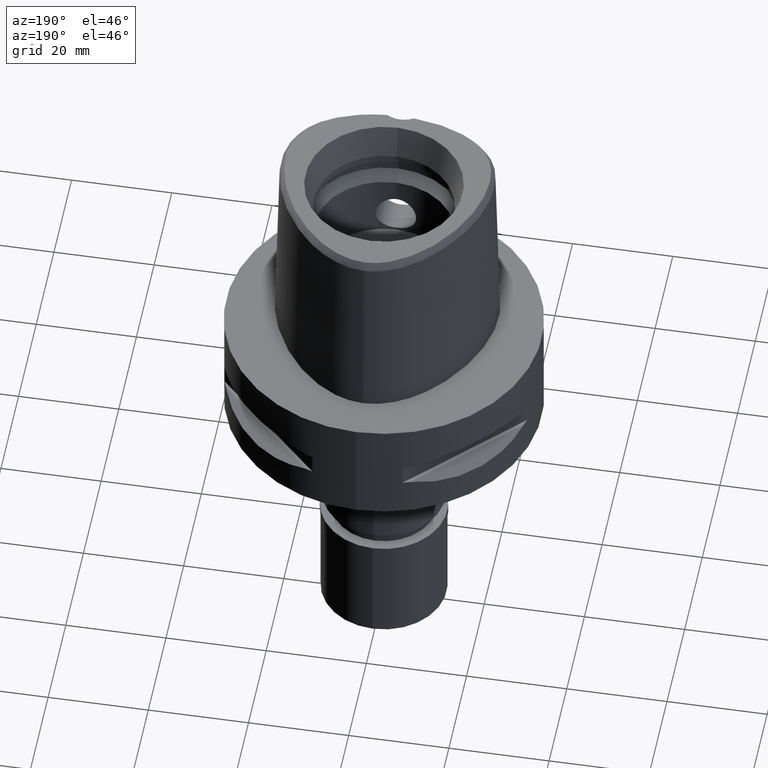
[diagram: clean part render]
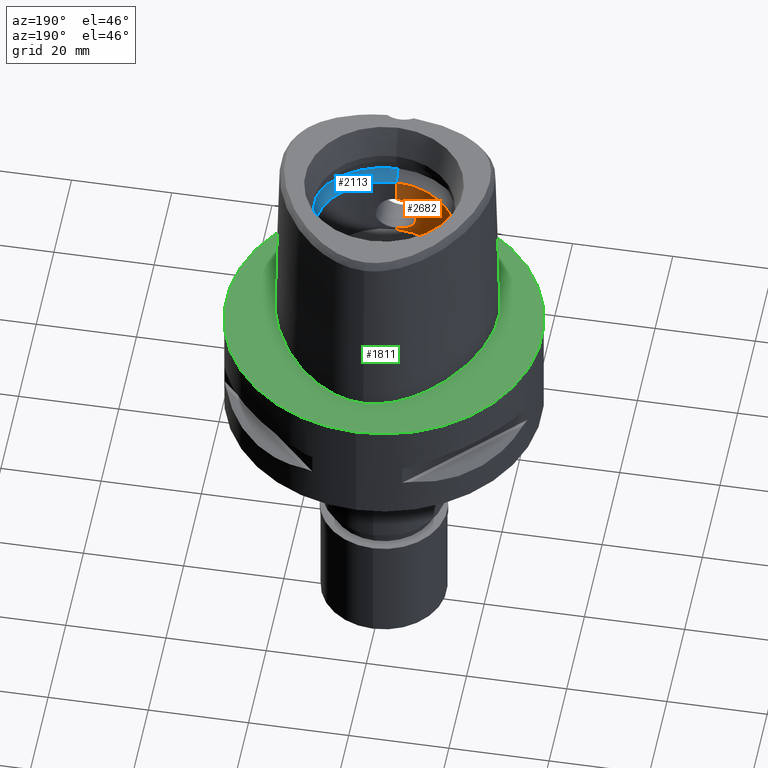
[diagram: same view with three faces highlighted in distinct colors, each labeled with its STEP entity id]
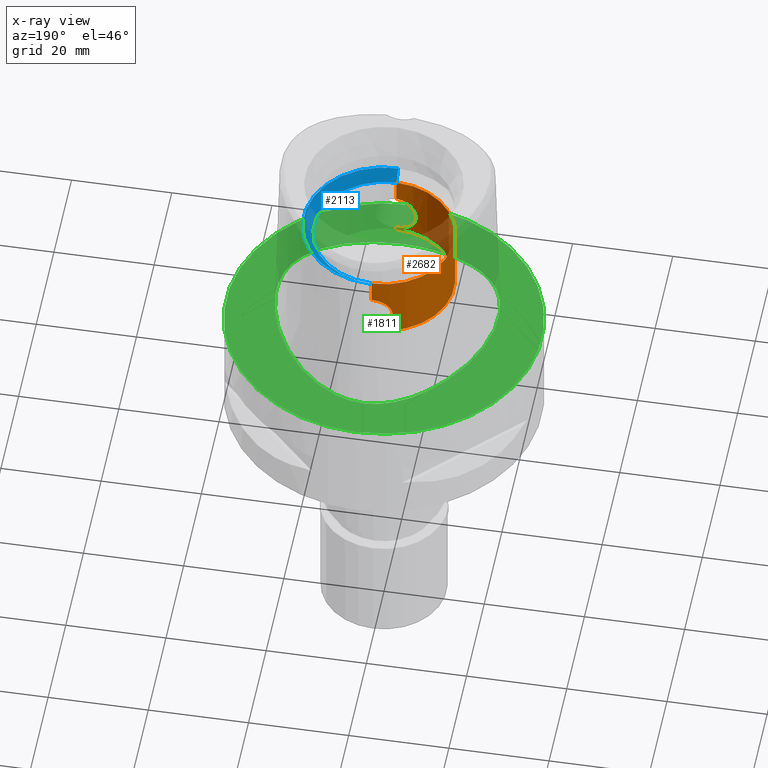
[diagram: x-ray of the same camera — body ghosted, the three highlighted faces saturated]
A machine part, auxiliary view with three faces highlighted in distinct colors.
The next image is the same camera in x-ray (body ghosted, the three faces saturated) — at least one of them is partly hidden behind the body in this view.
Their STEP definitions:

[orange] entity #2682 — the highlighted cylindrical surface (partial cylindrical patch) has radius 14 mm, axis along (0, 0, -1).
#57 = CARTESIAN_POINT ( 'NONE',  ( -1.565197752269892106, 13.91212870711917482, 11.76466637401746418 ) ) ;
#59 = EDGE_CURVE ( 'NONE', #1384, #2448, #2568, .T. ) ;
#60 = CARTESIAN_POINT ( 'NONE',  ( -1.468706225406943622, 13.92269496061643252, 19.27437575103957101 ) ) ;
#80 = CARTESIAN_POINT ( 'NONE',  ( -3.768167900847780416, 13.48339049936264367, 14.01556807823108208 ) ) ;
#90 = CARTESIAN_POINT ( 'NONE',  ( -2.729902466582959875, 13.73119181669201971, 18.49197004301790059 ) ) ;
#97 = CARTESIAN_POINT ( 'NONE',  ( -4.028802810988394434, 13.40828381619406251, 15.01110787084344977 ) ) ;
#103 = CARTESIAN_POINT ( 'NONE',  ( -3.039777176710482198, -13.66622794455831524, 18.17655026073353497 ) ) ;
#124 = CARTESIAN_POINT ( 'NONE',  ( -2.546633053688376780, -13.76604042256813720, 12.34991993756128714 ) ) ;
#131 = CARTESIAN_POINT ( 'NONE',  ( -1.012992260814328471, 13.96356374787602661, 19.42354431591497388 ) ) ;
#147 = CARTESIAN_POINT ( 'NONE',  ( -3.923167271523116284, -13.43952807430294349, 14.46007743467096418 ) ) ;
#166 = CARTESIAN_POINT ( 'NONE',  ( 0.0000000000000000000, 14.00000000000000000, 11.44999999999999929 ) ) ;
#167 = CARTESIAN_POINT ( 'NONE',  ( -4.043415992825115879, 13.40361415185262395, 15.76434628288927975 ) ) ;
#170 = CARTESIAN_POINT ( 'NONE',  ( -3.169624660578917119, 13.63715748941065797, 12.97773403603880382 ) ) ;
#172 = CARTESIAN_POINT ( 'NONE',  ( -3.760217959889077921, -13.48561452782693237, 17.00441986298421071 ) ) ;
#187 = CARTESIAN_POINT ( 'NONE',  ( -1.778981341881616718, -13.88606596662411619, 19.13882315020520508 ) ) ;
#204 = DIRECTION ( 'NONE',  ( 0.0000000000000000000, 0.0000000000000000000, -1.000000000000000000 ) ) ;
#269 = CARTESIAN_POINT ( 'NONE',  ( -3.388788027782372758, 13.58513129437125144, 13.27827049557442507 ) ) ;
#333 = CARTESIAN_POINT ( 'NONE',  ( -1.301361536938383079, -13.93948952135677821, 11.66372781602857600 ) ) ;
#352 = CARTESIAN_POINT ( 'NONE',  ( -3.758153236129718078, 13.48619167129786156, 13.99043308293429888 ) ) ;
#353 = CARTESIAN_POINT ( 'NONE',  ( -1.508421456873183075, 13.91844372565648058, 19.25861450661717100 ) ) ;
#403 = CARTESIAN_POINT ( 'NONE',  ( -3.689407876536348052, 13.50540440614053317, 13.81963305005023557 ) ) ;
#422 = VERTEX_POINT ( 'NONE', #3771 ) ;
#431 = CARTESIAN_POINT ( 'NONE',  ( 0.0000000000000000000, -14.00000000000000000, 11.00000000000000000 ) ) ;
#441 = CARTESIAN_POINT ( 'NONE',  ( -3.926583076244129167, 13.43839855294574903, 14.49887350168601508 ) ) ;
#467 = CARTESIAN_POINT ( 'NONE',  ( -3.845132958037468462, -13.46201784638421728, 14.19786521766437914 ) ) ;
#479 = CARTESIAN_POINT ( 'NONE',  ( -1.623652875512270999, 13.90540854486464362, 11.78956726493605345 ) ) ;
#483 = CARTESIAN_POINT ( 'NONE',  ( 0.0000000000000000000, 14.00000000000000000, 24.19999999999999929 ) ) ;
#494 = CARTESIAN_POINT ( 'NONE',  ( -0.4997775805545691119, -14.00000000000000355, 19.55000000000000071 ) ) ;
#519 = CARTESIAN_POINT ( 'NONE',  ( -1.658406311386929843, -13.90122467786724059, 19.19497871293628677 ) ) ;
#535 = CARTESIAN_POINT ( 'NONE',  ( -3.735758150002609579, 13.49241082197251451, 17.06417074176081883 ) ) ;
#540 = CARTESIAN_POINT ( 'NONE',  ( -3.660766373176340682, -13.51333431524477113, 13.76687100243275452 ) ) ;
#545 = AXIS2_PLACEMENT_3D ( 'NONE', #2549, #204, #1343 ) ;
#565 = CARTESIAN_POINT ( 'NONE',  ( -3.768106535778874555, -13.48340773416209259, 16.98458768050598522 ) ) ;
#653 = DIRECTION ( 'NONE',  ( 0.0000000000000000000, 0.0000000000000000000, 1.000000000000000000 ) ) ;
#706 = CARTESIAN_POINT ( 'NONE',  ( -1.012995336493473841, -13.96356358275246734, 11.57645646816876095 ) ) ;
#796 = CARTESIAN_POINT ( 'NONE',  ( -3.012293428190680356, 13.67225008329134539, 12.79253576529844239 ) ) ;
#797 = CARTESIAN_POINT ( 'NONE',  ( -1.301357915704773882, 13.93948979557983314, 19.33627340834693342 ) ) ;
#803 = LINE ( 'NONE', #431, #1401 ) ;
#814 = CARTESIAN_POINT ( 'NONE',  ( -3.956994914206982905, 13.42952182159758578, 14.62728403825478907 ) ) ;
#823 = CARTESIAN_POINT ( 'NONE',  ( -3.733188794238254893, 13.49312563363289996, 17.07028947600103663 ) ) ;
#824 = CARTESIAN_POINT ( 'NONE',  ( 0.0000000000000000000, 14.00000000000000000, 11.00000000000000000 ) ) ;
#826 = CARTESIAN_POINT ( 'NONE',  ( -4.049609528357473565, 13.40164547993988542, 15.63577715419303260 ) ) ;
#836 = CARTESIAN_POINT ( 'NONE',  ( 0.0000000000000000000, 0.0000000000000000000, 11.00000000000000000 ) ) ;
#845 = ORIENTED_EDGE ( 'NONE', *, *, #3062, .T. ) ;
#861 = CARTESIAN_POINT ( 'NONE',  ( -2.699296023149097667, -13.73718222956145318, 12.48040511193030433 ) ) ;
#883 = CARTESIAN_POINT ( 'NONE',  ( -3.105594841763202218, -13.65361941671326385, 12.87607307471612472 ) ) ;
#899 = CARTESIAN_POINT ( 'NONE',  ( 0.0000000000000000000, 14.00000000000000000, 19.55000000000000071 ) ) ;
#902 = CARTESIAN_POINT ( 'NONE',  ( -3.730007555881858838, -13.49401103325210372, 13.92215410948949561 ) ) ;
#921 = CARTESIAN_POINT ( 'NONE',  ( -3.923124946555821779, 13.43954031693480111, 16.54007662540752577 ) ) ;
#929 = CARTESIAN_POINT ( 'NONE',  ( -4.043430935745391253, -13.40360957353166427, 15.23587727990148011 ) ) ;
#944 = DIRECTION ( 'NONE',  ( 0.0000000000000000000, 1.000000000000000000, 0.0000000000000000000 ) ) ;
#950 = CARTESIAN_POINT ( 'NONE',  ( -2.389825969760394742, -13.79513392636536295, 18.78114353516329160 ) ) ;
#957 = CARTESIAN_POINT ( 'NONE',  ( -0.5007388272773030113, 13.99305976150019326, 19.52735675300923290 ) ) ;
#979 = CARTESIAN_POINT ( 'NONE',  ( -3.309038938498161553, 13.60472549729461100, 13.15988341505569714 ) ) ;
#1046 = CARTESIAN_POINT ( 'NONE',  ( -0.2469293882773125337, -14.00000000000000355, 11.45000000000000284 ) ) ;
#1062 = LINE ( 'NONE', #4775, #1106 ) ;
#1104 = CARTESIAN_POINT ( 'NONE',  ( -1.521554340111068937, -13.91701661829590897, 11.74668397956538968 ) ) ;
#1106 = VECTOR ( 'NONE', #2977, 1000.000000000000000 ) ;
#1126 = CARTESIAN_POINT ( 'NONE',  ( -2.546615724720767027, 13.76604373820678262, 18.65009401908694642 ) ) ;
#1132 = CARTESIAN_POINT ( 'NONE',  ( 0.0000000000000000000, -14.00000000000000000, 11.44999999999999929 ) ) ;
#1169 = CARTESIAN_POINT ( 'NONE',  ( 0.0000000000000000000, 14.00000000000000000, 11.44999999999999929 ) ) ;
#1191 = ORIENTED_EDGE ( 'NONE', *, *, #4132, .F. ) ;
#1196 = CARTESIAN_POINT ( 'NONE',  ( -3.660721807586325038, 13.51334654575467731, 17.23322306588911346 ) ) ;
#1202 = CARTESIAN_POINT ( 'NONE',  ( -3.845087605774317296, 13.46203070119392997, 16.80226352188602235 ) ) ;
#1213 = CARTESIAN_POINT ( 'NONE',  ( -3.800233076612335115, 13.47439512726517563, 14.09901785943385732 ) ) ;
#1227 = CARTESIAN_POINT ( 'NONE',  ( -4.050725865350880639, 13.40131473077963520, 15.26502971499587602 ) ) ;
#1232 = CARTESIAN_POINT ( 'NONE',  ( -1.729527234025655114, -13.89244831573701333, 19.16250628362119812 ) ) ;
#1241 = CARTESIAN_POINT ( 'NONE',  ( -1.557024163177525455, 13.91304512983567143, 11.76125898112332635 ) ) ;
#1258 = CARTESIAN_POINT ( 'NONE',  ( -3.293027677677110798, -13.60939170744895144, 13.12741077617191543 ) ) ;
#1278 = CARTESIAN_POINT ( 'NONE',  ( -4.028775447755813310, -13.40829212435414597, 15.98911062904811331 ) ) ;
#1299 = CARTESIAN_POINT ( 'NONE',  ( -1.623610024061116874, -13.90541356854757460, 19.21045149538777963 ) ) ;
#1323 = CARTESIAN_POINT ( 'NONE',  ( -3.563427558882674706, -13.54004536835793715, 13.57214020310229863 ) ) ;
#1343 = DIRECTION ( 'NONE',  ( 0.0000000000000000000, -1.000000000000000000, 0.0000000000000000000 ) ) ;
#1384 = VERTEX_POINT ( 'NONE', #899 ) ;
#1401 = VECTOR ( 'NONE', #2769, 1000.000000000000000 ) ;
#1457 = CARTESIAN_POINT ( 'NONE',  ( -2.247289565544655421, 13.81780668599445683, 18.87194470381002631 ) ) ;
#1463 = CARTESIAN_POINT ( 'NONE',  ( -1.508425379429274793, -13.91844335605583183, 11.74138706759197603 ) ) ;
#1523 = VERTEX_POINT ( 'NONE', #2475 ) ;
#1584 = CARTESIAN_POINT ( 'NONE',  ( -1.551592118299728762, 13.91365192588830091, 11.75900139676852341 ) ) ;
#1598 = CARTESIAN_POINT ( 'NONE',  ( -2.043009476117309209, -13.84937125182497297, 18.99961141364525830 ) ) ;
#1609 = CARTESIAN_POINT ( 'NONE',  ( -3.504446584190153757, 13.55580104200974567, 17.53446065857021807 ) ) ;
#1621 = CARTESIAN_POINT ( 'NONE',  ( -3.169550771885637275, -13.63717460131944215, 18.02235875172307900 ) ) ;
#1630 = CARTESIAN_POINT ( 'NONE',  ( -1.729567371366870887, 13.89244322280640453, 11.83751268424530600 ) ) ;
#1648 = AXIS2_PLACEMENT_3D ( 'NONE', #3826, #653, #944 ) ;
#1650 = CARTESIAN_POINT ( 'NONE',  ( -2.365592015419500704, -13.79828947051690058, 12.20912600420012062 ) ) ;
#1673 = CARTESIAN_POINT ( 'NONE',  ( -3.388717039249794727, -13.58514902095290111, 17.72183749833804356 ) ) ;
#1696 = CARTESIAN_POINT ( 'NONE',  ( -3.706404040796424049, -13.50059845634289957, 13.86720749183007229 ) ) ;
#1726 = EDGE_CURVE ( 'NONE', #1946, #2448, #3333, .T. ) ;
#1743 = CYLINDRICAL_SURFACE ( 'NONE', #545, 14.00000000000000000 ) ;
#1836 = CARTESIAN_POINT ( 'NONE',  ( -1.521550372249054206, 13.91701699746544563, 19.25331762898135324 ) ) ;
#1841 = CARTESIAN_POINT ( 'NONE',  ( -0.8845599702204706150, -13.97223892019235691, 11.54563352751063299 ) ) ;
#1927 = CARTESIAN_POINT ( 'NONE',  ( -1.779020872946119436, 13.88606076197723738, 11.86119617353189248 ) ) ;
#1928 = CARTESIAN_POINT ( 'NONE',  ( -1.205295551865130044, 13.94794821125147166, 19.36706942819867194 ) ) ;
#1940 = EDGE_LOOP ( 'NONE', ( #2762, #3583, #2073, #4293, #3979, #845, #1191, #3871 ) ) ;
#1946 = VERTEX_POINT ( 'NONE', #2465 ) ;
#1947 = CARTESIAN_POINT ( 'NONE',  ( -3.870767151652546367, 13.45440974428845671, 14.30663757066181141 ) ) ;
#1973 = CARTESIAN_POINT ( 'NONE',  ( -3.840254419489234294, -13.46310552005199845, 16.78955245903931726 ) ) ;
#1981 = CARTESIAN_POINT ( 'NONE',  ( -1.584447416871408665, 13.90994678698464071, 11.77276535547611758 ) ) ;
#1994 = CARTESIAN_POINT ( 'NONE',  ( -3.870713067825628517, -13.45442521738144848, 16.69353764987407374 ) ) ;
#2009 = DIRECTION ( 'NONE',  ( 0.0000000000000000000, 0.0000000000000000000, 1.000000000000000000 ) ) ;
#2014 = CARTESIAN_POINT ( 'NONE',  ( -4.050711662061031504, -13.40131922892610383, 15.73520257182254767 ) ) ;
#2038 = CARTESIAN_POINT ( 'NONE',  ( -3.722337697629979125, -13.49614878385005667, 13.90409130297739360 ) ) ;
#2039 = CARTESIAN_POINT ( 'NONE',  ( -0.2469284355310924772, 13.99999999999999645, 19.54999999999999716 ) ) ;
#2065 = CARTESIAN_POINT ( 'NONE',  ( -3.735801320034690232, -13.49239873808703827, 13.93593236552584536 ) ) ;
#2073 = ORIENTED_EDGE ( 'NONE', *, *, #1726, .T. ) ;
#2209 = CARTESIAN_POINT ( 'NONE',  ( -1.516358421698025039, 13.91758297342066975, 19.25541947561839962 ) ) ;
#2215 = CARTESIAN_POINT ( 'NONE',  ( -1.413019049606150768, -13.92848268697991898, 11.70422515298657551 ) ) ;
#2298 = VERTEX_POINT ( 'NONE', #1132 ) ;
#2328 = CARTESIAN_POINT ( 'NONE',  ( -3.691648677372870946, 13.50472327378159498, 17.16578558944966204 ) ) ;
#2345 = CARTESIAN_POINT ( 'NONE',  ( -3.840311246454841232, 13.46308936353991470, 14.21061646223315478 ) ) ;
#2354 = CARTESIAN_POINT ( 'NONE',  ( -2.644110722918563638, 13.75046056932892036, 12.41122575840297060 ) ) ;
#2355 = CARTESIAN_POINT ( 'NONE',  ( -2.607550409935472047, 13.75479840680402965, 18.59996607593286555 ) ) ;
#2374 = CARTESIAN_POINT ( 'NONE',  ( -1.030568495622591563, -13.97141920833535522, 19.45620927079242435 ) ) ;
#2386 = CARTESIAN_POINT ( 'NONE',  ( -2.820719609740979461, 13.71293505524418777, 18.40654921930142862 ) ) ;
#2397 = CARTESIAN_POINT ( 'NONE',  ( -3.012217989785409333, -13.67226665468526292, 18.20754815006151617 ) ) ;
#2401 = DIRECTION ( 'NONE',  ( 0.0000000000000000000, -1.000000000000000000, 0.0000000000000000000 ) ) ;
#2403 = EDGE_CURVE ( 'NONE', #422, #2298, #803, .T. ) ;
#2415 = CARTESIAN_POINT ( 'NONE',  ( -3.763381629817362128, -13.48472970429610740, 16.99648820188032872 ) ) ;
#2439 = CARTESIAN_POINT ( 'NONE',  ( -2.820743580740006973, -13.71293012935441524, 12.59347400896460556 ) ) ;
#2448 = VERTEX_POINT ( 'NONE', #166 ) ;
#2457 = CARTESIAN_POINT ( 'NONE',  ( -3.735368025535151570, -13.49251931749224376, 13.93490149629353070 ) ) ;
#2465 = CARTESIAN_POINT ( 'NONE',  ( 0.0000000000000000000, 14.00000000000000000, 11.00000000000000000 ) ) ;
#2475 = CARTESIAN_POINT ( 'NONE',  ( 0.0000000000000000000, -14.00000000000000000, 19.55000000000000071 ) ) ;
#2549 = CARTESIAN_POINT ( 'NONE',  ( 0.0000000000000000000, 0.0000000000000000000, 39.89999999999999858 ) ) ;
#2556 = EDGE_CURVE ( 'NONE', #1384, #2997, #3165, .T. ) ;
#2568 = B_SPLINE_CURVE_WITH_KNOTS ( 'NONE', 3,
 ( #3133, #2039, #957, #3568, #131, #1928, #797, #3778, #60, #4056, #353, #2209, #1836, #2983, #4800, #1457, #4471, #1126, #2355, #3434, #90, #4229, #2386, #3462, #3095, #1609, #4584, #3054, #1196, #2328, #3607, #3930, #4375, #823, #3876, #535, #1202, #921, #2699, #3517, #167, #826, #1227, #97, #814, #441, #1947, #2345, #1213, #2729, #80, #4677, #3756, #352, #403, #3924, #269, #979, #170, #3028, #3665, #796, #4175, #3403, #2354, #3053, #4150, #4582, #1927, #1630, #3822, #479, #1981, #57, #1241, #1584, #3026, #3094, #4247, #1169 ),
 .UNSPECIFIED., .F., .F.,
 ( 4, 2, 2, 1, 1, 1, 1, 2, 2, 2, 2, 2, 2, 2, 2, 2, 2, 1, 1, 1, 2, 2, 2, 2, 2, 2, 2, 1, 1, 1, 1, 2, 2, 2, 2, 2, 2, 2, 2, 2, 2, 1, 1, 1, 2, 2, 4 ),
 ( 0.0000000000000000000, 0.06249999999999533706, 0.09374999999999299172, 0.1093749999999919231, 0.1171874999999912431, 0.1210937499999907990, 0.1230468749999905631, 0.1240234374999904104, 0.1249999999999902717, 0.1874999999999876765, 0.2187499999999863165, 0.2343749999999854283, 0.2421874999999849565, 0.2499999999999845124, 0.3124999999999814038, 0.3437499999999797939, 0.3593749999999794054, 0.3671874999999791833, 0.3710937499999786282, 0.3730468749999778511, 0.3740234374999774625, 0.3749999999999771294, 0.4374999999999801825, 0.4687499999999817368, 0.4999999999999832356, 0.5624999999999871214, 0.5937499999999891198, 0.6093749999999900080, 0.6171874999999905631, 0.6210937499999910072, 0.6230468749999913403, 0.6240234374999915623, 0.6249999999999916733, 0.6874999999999947820, 0.7187499999999963363, 0.7343749999999968914, 0.7421874999999972244, 0.7499999999999975575, 0.8125000000000007772, 0.8437500000000024425, 0.8593750000000033307, 0.8671875000000038858, 0.8710937500000042188, 0.8730468750000043299, 0.8740234375000044409, 0.8750000000000044409, 1.000000000000000000 ),
 .UNSPECIFIED. ) ;
#2602 = DIRECTION ( 'NONE',  ( 0.0000000000000000000, 0.0000000000000000000, 1.000000000000000000 ) ) ;
#2603 = CARTESIAN_POINT ( 'NONE',  ( -1.699782299810376429, -13.89752586657126976, 11.81908738755310573 ) ) ;
#2682 = ADVANCED_FACE ( 'NONE', ( #2839 ), #1743, .F. ) ;
#2699 = CARTESIAN_POINT ( 'NONE',  ( -3.999663932952841172, 13.41693826561500380, 16.15017736556123396 ) ) ;
#2723 = CARTESIAN_POINT ( 'NONE',  ( -1.551546203277043734, -13.91365704581021667, 19.24101764641599388 ) ) ;
#2729 = CARTESIAN_POINT ( 'NONE',  ( -3.779048034583173177, 13.48034289444411371, 14.04335853034689308 ) ) ;
#2756 = CARTESIAN_POINT ( 'NONE',  ( -2.791184414143038861, -13.71894972005544489, 12.56511637380136648 ) ) ;
#2762 = ORIENTED_EDGE ( 'NONE', *, *, #2403, .F. ) ;
#2769 = DIRECTION ( 'NONE',  ( 0.0000000000000000000, 0.0000000000000000000, 1.000000000000000000 ) ) ;
#2772 = CARTESIAN_POINT ( 'NONE',  ( -2.247299824840608640, -13.81780484943336695, 12.12806203007402317 ) ) ;
#2791 = CARTESIAN_POINT ( 'NONE',  ( -3.758091343990920485, -13.48620902795523158, 17.00972099160751583 ) ) ;
#2810 = VECTOR ( 'NONE', #2009, 1000.000000000000000 ) ;
#2818 = CARTESIAN_POINT ( 'NONE',  ( -4.018472548918508913, -13.41125190303761983, 14.97944940975590455 ) ) ;
#2839 = FACE_OUTER_BOUND ( 'NONE', #1940, .T. ) ;
#2862 = CARTESIAN_POINT ( 'NONE',  ( 0.0000000000000000000, -14.00000000000000000, 11.44999999999999929 ) ) ;
#2959 = CARTESIAN_POINT ( 'NONE',  ( -1.516362354530096379, -13.91758259991920887, 11.74458211236949623 ) ) ;
#2977 = DIRECTION ( 'NONE',  ( 0.0000000000000000000, 0.0000000000000000000, 1.000000000000000000 ) ) ;
#2983 = CARTESIAN_POINT ( 'NONE',  ( -1.699779949433230186, 13.89752613236414724, 19.18091378210606024 ) ) ;
#2997 = VERTEX_POINT ( 'NONE', #483 ) ;
#3026 = CARTESIAN_POINT ( 'NONE',  ( -1.550213645838262710, 13.91380589170602278, 11.75842858607844654 ) ) ;
#3028 = CARTESIAN_POINT ( 'NONE',  ( -3.119855374919092483, 13.64847493473783935, 12.91626838100044772 ) ) ;
#3053 = CARTESIAN_POINT ( 'NONE',  ( -2.389876557552610414, 13.79512478714676504, 12.21889248836107100 ) ) ;
#3054 = CARTESIAN_POINT ( 'NONE',  ( -3.638099860496977200, 13.51962615429425085, 17.28038450087376177 ) ) ;
#3059 = CIRCLE ( 'NONE', #4301, 14.00000000000000000 ) ;
#3062 = EDGE_CURVE ( 'NONE', #2997, #3873, #3124, .T. ) ;
#3085 = CARTESIAN_POINT ( 'NONE',  ( -1.556978511142797839, -13.91305023878985381, 19.23876003075068297 ) ) ;
#3094 = CARTESIAN_POINT ( 'NONE',  ( -1.030599357388946258, 13.97141749776779918, 11.54379603024887935 ) ) ;
#3095 = CARTESIAN_POINT ( 'NONE',  ( -3.292986268906289649, 13.60940150997263132, 17.87264526713172330 ) ) ;
#3100 = CARTESIAN_POINT ( 'NONE',  ( 0.0000000000000000000, 14.00000000000000000, 19.55000000000000071 ) ) ;
#3105 = CARTESIAN_POINT ( 'NONE',  ( -2.729924548923928551, -13.73118739249206222, 12.50805008560197074 ) ) ;
#3124 = CIRCLE ( 'NONE', #1648, 14.00000000000000000 ) ;
#3132 = CARTESIAN_POINT ( 'NONE',  ( -3.638144624098421875, -13.51961397270144261, 13.71970689628968465 ) ) ;
#3133 = CARTESIAN_POINT ( 'NONE',  ( 0.0000000000000000000, 14.00000000000000000, 19.55000000000000071 ) ) ;
#3150 = CARTESIAN_POINT ( 'NONE',  ( -3.956951552814506279, -13.42953451973628454, 16.37291157206835379 ) ) ;
#3165 = LINE ( 'NONE', #3100, #2810 ) ;
#3170 = CARTESIAN_POINT ( 'NONE',  ( -1.584403015203979859, -13.90995184950127417, 19.22725352195925197 ) ) ;
#3183 = CARTESIAN_POINT ( 'NONE',  ( 0.0000000000000000000, -14.00000000000000000, 24.19999999999999929 ) ) ;
#3294 = CARTESIAN_POINT ( 'NONE',  ( -0.5007406096055848632, -13.99305973004809012, 11.47264342272135096 ) ) ;
#3314 = CARTESIAN_POINT ( 'NONE',  ( -1.468710095235920887, -13.92269461028174860, 11.72562575457468803 ) ) ;
#3333 = LINE ( 'NONE', #824, #4131 ) ;
#3403 = CARTESIAN_POINT ( 'NONE',  ( -2.926999207190992713, 13.69064613703324973, 12.70050063387102668 ) ) ;
#3434 = CARTESIAN_POINT ( 'NONE',  ( -2.699274746447893669, 13.73718645816223294, 18.51961389026163118 ) ) ;
#3451 = CARTESIAN_POINT ( 'NONE',  ( -3.689343495913762538, -13.50542228466468764, 17.18050701499813115 ) ) ;
#3462 = CARTESIAN_POINT ( 'NONE',  ( -3.105558751965179720, 13.65362732420146585, 18.12396715338260123 ) ) ;
#3476 = CARTESIAN_POINT ( 'NONE',  ( -1.932914200338249122, -13.86532459620721447, 19.06083934305658545 ) ) ;
#3495 = CARTESIAN_POINT ( 'NONE',  ( -3.733232102975786226, -13.49311351563480699, 13.92981348948425513 ) ) ;
#3517 = CARTESIAN_POINT ( 'NONE',  ( -4.018446116238923338, 13.41125983601988736, 16.02075201314600861 ) ) ;
#3521 = CARTESIAN_POINT ( 'NONE',  ( -3.800173532756359052, -13.47441193617308031, 16.90114357080759788 ) ) ;
#3531 = CARTESIAN_POINT ( 'NONE',  ( 0.0000000000000000000, -14.00000000000000000, 19.55000000000000071 ) ) ;
#3543 = CARTESIAN_POINT ( 'NONE',  ( -3.926535004702356613, -13.43841249357033796, 16.50131411518015057 ) ) ;
#3568 = CARTESIAN_POINT ( 'NONE',  ( -0.8845571875765005920, 13.97223904600078725, 19.45436708326309727 ) ) ;
#3583 = ORIENTED_EDGE ( 'NONE', *, *, #4371, .T. ) ;
#3607 = CARTESIAN_POINT ( 'NONE',  ( -3.706360145925147176, 13.50061067300410755, 17.13289212056682587 ) ) ;
#3665 = CARTESIAN_POINT ( 'NONE',  ( -3.039852367018344825, 13.66621127466137153, 12.82353512136057105 ) ) ;
#3690 = CARTESIAN_POINT ( 'NONE',  ( -1.906897757742287869, -13.87039902703461891, 11.91705014763728698 ) ) ;
#3743 = EDGE_CURVE ( 'NONE', #2298, #1523, #4816, .T. ) ;
#3756 = CARTESIAN_POINT ( 'NONE',  ( -3.760279731028953076, 13.48559719960431913, 13.99573453927713373 ) ) ;
#3771 = CARTESIAN_POINT ( 'NONE',  ( 0.0000000000000000000, -14.00000000000000000, 11.00000000000000000 ) ) ;
#3778 = CARTESIAN_POINT ( 'NONE',  ( -1.413015257789783874, 13.92848301108404030, 19.29577625758675907 ) ) ;
#3822 = CARTESIAN_POINT ( 'NONE',  ( -1.658448129713550490, 13.90121964844593805, 11.80504005994789551 ) ) ;
#3826 = CARTESIAN_POINT ( 'NONE',  ( 0.0000000000000000000, 0.0000000000000000000, 24.19999999999999929 ) ) ;
#3837 = CARTESIAN_POINT ( 'NONE',  ( -1.565152488459139235, -13.91213380043477521, 19.23535259300894396 ) ) ;
#3861 = CARTESIAN_POINT ( 'NONE',  ( -2.955253785141328304, -13.68459745436045516, 18.26961175407244653 ) ) ;
#3871 = ORIENTED_EDGE ( 'NONE', *, *, #3743, .F. ) ;
#3873 = VERTEX_POINT ( 'NONE', #3183 ) ;
#3876 = CARTESIAN_POINT ( 'NONE',  ( -3.735324769030368142, 13.49253142464080568, 17.06520173835001586 ) ) ;
#3881 = CARTESIAN_POINT ( 'NONE',  ( -3.595174538798236785, -13.53244809429100037, 17.38336937430464246 ) ) ;
#3912 = CARTESIAN_POINT ( 'NONE',  ( -4.049617721378094615, -13.40164293802411954, 15.36447282398803793 ) ) ;
#3924 = CARTESIAN_POINT ( 'NONE',  ( -3.595241708230181743, 13.53243006106320401, 13.61675752710726073 ) ) ;
#3930 = CARTESIAN_POINT ( 'NONE',  ( -3.722294134842947688, 13.49616095037960051, 17.09601029431964747 ) ) ;
#3979 = ORIENTED_EDGE ( 'NONE', *, *, #2556, .T. ) ;
#4056 = CARTESIAN_POINT ( 'NONE',  ( -1.496513014648010342, 13.91972977082771479, 19.26338633869108463 ) ) ;
#4131 = VECTOR ( 'NONE', #2602, 1000.000000000000000 ) ;
#4132 = EDGE_CURVE ( 'NONE', #1523, #3873, #1062, .T. ) ;
#4150 = CARTESIAN_POINT ( 'NONE',  ( -2.043050337499535463, 13.84936486420608759, 12.00041224795530148 ) ) ;
#4175 = CARTESIAN_POINT ( 'NONE',  ( -2.955329705508786375, 13.68458109119553257, 12.73046924345545072 ) ) ;
#4216 = CARTESIAN_POINT ( 'NONE',  ( -1.550167341858200043, -13.91381105013629949, 19.24159059814564898 ) ) ;
#4229 = CARTESIAN_POINT ( 'NONE',  ( -2.791160715012216631, 13.71895454990570151, 18.43490614472503353 ) ) ;
#4240 = CARTESIAN_POINT ( 'NONE',  ( -3.308966732067871952, -13.60474303187727152, 17.84021841670548980 ) ) ;
#4244 = DIRECTION ( 'NONE',  ( 0.0000000000000000000, 0.0000000000000000000, -1.000000000000000000 ) ) ;
#4247 = CARTESIAN_POINT ( 'NONE',  ( -0.4997914722158469103, 14.00000000000000355, 11.45000000000000107 ) ) ;
#4261 = CARTESIAN_POINT ( 'NONE',  ( -3.691692817303332763, -13.50471104070298267, 13.83431221924162458 ) ) ;
#4280 = CARTESIAN_POINT ( 'NONE',  ( -3.504491265599168237, -13.55578952984422259, 13.46561589244255508 ) ) ;
#4293 = ORIENTED_EDGE ( 'NONE', *, *, #59, .F. ) ;
#4301 = AXIS2_PLACEMENT_3D ( 'NONE', #836, #4244, #2401 ) ;
#4302 = CARTESIAN_POINT ( 'NONE',  ( -3.778987255786648181, -13.48035999331830581, 16.95679912361957165 ) ) ;
#4371 = EDGE_CURVE ( 'NONE', #422, #1946, #3059, .T. ) ;
#4375 = CARTESIAN_POINT ( 'NONE',  ( -3.729964169469385915, 13.49402316697130821, 17.07794845008750073 ) ) ;
#4451 = CARTESIAN_POINT ( 'NONE',  ( -1.205299002062717673, -13.94794797536067144, 11.63293164462927010 ) ) ;
#4471 = CARTESIAN_POINT ( 'NONE',  ( -2.365579121905755589, 13.79829182933966791, 18.79088306263430397 ) ) ;
#4572 = CARTESIAN_POINT ( 'NONE',  ( -2.644047123678465727, -13.75047265297508226, 18.58882540051922305 ) ) ;
#4582 = CARTESIAN_POINT ( 'NONE',  ( -1.932953361483821686, 13.86531884828129435, 11.93918190328177786 ) ) ;
#4584 = CARTESIAN_POINT ( 'NONE',  ( -3.563382559207837197, 13.54005726158550615, 17.42794268595618945 ) ) ;
#4598 = CARTESIAN_POINT ( 'NONE',  ( -2.607569296374558032, -13.75479474332287211, 12.40004974246595815 ) ) ;
#4618 = CARTESIAN_POINT ( 'NONE',  ( -3.999695154066608804, -13.41692899811251394, 14.85001248466316426 ) ) ;
#4635 = CARTESIAN_POINT ( 'NONE',  ( -3.119780949256687919, -13.64849188330942731, 18.08382142528965630 ) ) ;
#4658 = CARTESIAN_POINT ( 'NONE',  ( -2.926921228800453800, -13.69066278194166486, 18.29958083707563077 ) ) ;
#4677 = CARTESIAN_POINT ( 'NONE',  ( -3.763443239426924602, 13.48471241318395819, 14.00366674316089011 ) ) ;
#4775 = CARTESIAN_POINT ( 'NONE',  ( 0.0000000000000000000, -14.00000000000000000, 19.55000000000000071 ) ) ;
#4800 = CARTESIAN_POINT ( 'NONE',  ( -1.906893669216076947, 13.87039964365740197, 19.08295163826376140 ) ) ;
#4806 = CARTESIAN_POINT ( 'NONE',  ( -1.496516921659728050, -13.91972940705522177, 11.73661521487823478 ) ) ;
#4816 = B_SPLINE_CURVE_WITH_KNOTS ( 'NONE', 3,
 ( #2862, #1046, #3294, #1841, #706, #4451, #333, #2215, #3314, #4806, #1463, #2959, #1104, #2603, #3690, #2772, #1650, #124, #4598, #861, #3105, #2756, #2439, #883, #1258, #4280, #1323, #3132, #540, #4261, #1696, #2038, #902, #3495, #2457, #2065, #467, #147, #4618, #2818, #929, #3912, #2014, #1278, #3150, #3543, #1994, #1973, #3521, #4302, #565, #2415, #172, #2791, #3451, #3881, #1673, #4240, #1621, #4635, #103, #2397, #3861, #4658, #4572, #950, #1598, #3476, #187, #1232, #519, #1299, #3170, #3837, #3085, #2723, #4216, #2374, #494, #3531 ),
 .UNSPECIFIED., .F., .F.,
 ( 4, 2, 2, 1, 1, 1, 1, 2, 2, 2, 2, 2, 2, 2, 2, 2, 2, 1, 1, 1, 2, 2, 2, 2, 2, 2, 2, 1, 1, 1, 1, 2, 2, 2, 2, 2, 2, 2, 2, 2, 2, 1, 1, 1, 2, 2, 4 ),
 ( 0.0000000000000000000, 0.06249999999996370958, 0.09374999999994551581, 0.1093749999999364259, 0.1171874999999319572, 0.1210937499999297229, 0.1230468749999285294, 0.1240234374999279188, 0.1249999999999273081, 0.1874999999998901434, 0.2187499999998716027, 0.2343749999998623879, 0.2421874999998578359, 0.2499999999998533118, 0.3124999999998179234, 0.3437499999998002709, 0.3593749999997917222, 0.3671874999997871702, 0.3710937499997846167, 0.3730468749997832845, 0.3740234374997828959, 0.3749999999997824518, 0.4374999999997630784, 0.4687499999997533640, 0.4999999999997436495, 0.5624999999997233324, 0.5937499999997136735, 0.6093749999997087885, 0.6171874999997063460, 0.6210937499997055689, 0.6230468749997046807, 0.6240234374997046807, 0.6249999999997046807, 0.6874999999997544187, 0.7187499999997793987, 0.7343749999997915001, 0.7421874999997974953, 0.7499999999998034905, 0.8124999999998531175, 0.8437499999998779865, 0.8593749999998906430, 0.8671874999998970823, 0.8710937499999001910, 0.8730468749999020783, 0.8740234374999029665, 0.8749999999999038547, 1.000000000000000000 ),
 .UNSPECIFIED. ) ;

[blue] entity #2113 — the highlighted conical surface has half-angle 45 deg.
#78 = AXIS2_PLACEMENT_3D ( 'NONE', #2080, #3975, #967 ) ;
#104 = DIRECTION ( 'NONE',  ( 0.0000000000000000000, -1.000000000000000000, 0.0000000000000000000 ) ) ;
#230 = CIRCLE ( 'NONE', #78, 16.00000000000000000 ) ;
#242 = DIRECTION ( 'NONE',  ( 0.0000000000000000000, -0.7071067811865474617, 0.7071067811865474617 ) ) ;
#483 = CARTESIAN_POINT ( 'NONE',  ( 0.0000000000000000000, 14.00000000000000000, 24.19999999999999929 ) ) ;
#663 = EDGE_CURVE ( 'NONE', #3873, #3721, #2120, .T. ) ;
#667 = DIRECTION ( 'NONE',  ( 0.0000000000000000000, 1.000000000000000000, 0.0000000000000000000 ) ) ;
#739 = DIRECTION ( 'NONE',  ( 0.0000000000000000000, 0.0000000000000000000, 1.000000000000000000 ) ) ;
#926 = EDGE_CURVE ( 'NONE', #3873, #2997, #3258, .T. ) ;
#967 = DIRECTION ( 'NONE',  ( 0.0000000000000000000, 1.000000000000000000, 0.0000000000000000000 ) ) ;
#1034 = FACE_OUTER_BOUND ( 'NONE', #1073, .T. ) ;
#1073 = EDGE_LOOP ( 'NONE', ( #4722, #1543, #3382, #2365 ) ) ;
#1095 = CONICAL_SURFACE ( 'NONE', #3817, 15.00000000000000000, 0.7853981633972997312 ) ;
#1138 = CARTESIAN_POINT ( 'NONE',  ( 0.0000000000000000000, 0.0000000000000000000, 25.19999999999999929 ) ) ;
#1543 = ORIENTED_EDGE ( 'NONE', *, *, #2897, .F. ) ;
#1545 = VECTOR ( 'NONE', #242, 1000.000000000000114 ) ;
#1718 = DIRECTION ( 'NONE',  ( 0.0000000000000000000, 0.7071067811865474617, 0.7071067811865474617 ) ) ;
#2080 = CARTESIAN_POINT ( 'NONE',  ( 0.0000000000000000000, 0.0000000000000000000, 26.20000000000000284 ) ) ;
#2113 = ADVANCED_FACE ( 'NONE', ( #1034 ), #1095, .F. ) ;
#2120 = LINE ( 'NONE', #2482, #1545 ) ;
#2280 = CARTESIAN_POINT ( 'NONE',  ( 0.0000000000000000000, 16.00000000000000000, 26.20000000000000284 ) ) ;
#2363 = VECTOR ( 'NONE', #1718, 1000.000000000000114 ) ;
#2365 = ORIENTED_EDGE ( 'NONE', *, *, #663, .T. ) ;
#2454 = LINE ( 'NONE', #3932, #2363 ) ;
#2482 = CARTESIAN_POINT ( 'NONE',  ( 0.0000000000000000000, -14.00000000000000000, 24.19999999999999929 ) ) ;
#2551 = CARTESIAN_POINT ( 'NONE',  ( 0.0000000000000000000, -16.00000000000000000, 26.20000000000000284 ) ) ;
#2633 = CARTESIAN_POINT ( 'NONE',  ( 0.0000000000000000000, 0.0000000000000000000, 24.19999999999999929 ) ) ;
#2897 = EDGE_CURVE ( 'NONE', #2997, #3428, #2454, .T. ) ;
#2997 = VERTEX_POINT ( 'NONE', #483 ) ;
#3183 = CARTESIAN_POINT ( 'NONE',  ( 0.0000000000000000000, -14.00000000000000000, 24.19999999999999929 ) ) ;
#3258 = CIRCLE ( 'NONE', #3734, 14.00000000000000000 ) ;
#3295 = EDGE_CURVE ( 'NONE', #3428, #3721, #230, .T. ) ;
#3382 = ORIENTED_EDGE ( 'NONE', *, *, #926, .F. ) ;
#3428 = VERTEX_POINT ( 'NONE', #2280 ) ;
#3721 = VERTEX_POINT ( 'NONE', #2551 ) ;
#3734 = AXIS2_PLACEMENT_3D ( 'NONE', #2633, #4139, #104 ) ;
#3817 = AXIS2_PLACEMENT_3D ( 'NONE', #1138, #739, #667 ) ;
#3873 = VERTEX_POINT ( 'NONE', #3183 ) ;
#3932 = CARTESIAN_POINT ( 'NONE',  ( 0.0000000000000000000, 14.00000000000000000, 24.19999999999999929 ) ) ;
#3975 = DIRECTION ( 'NONE',  ( 0.0000000000000000000, 0.0000000000000000000, -1.000000000000000000 ) ) ;
#4139 = DIRECTION ( 'NONE',  ( 0.0000000000000000000, 0.0000000000000000000, 1.000000000000000000 ) ) ;
#4722 = ORIENTED_EDGE ( 'NONE', *, *, #3295, .F. ) ;

[green] entity #1811 — the highlighted planar face has unit normal (0, 0, -1).
#51 = CARTESIAN_POINT ( 'NONE',  ( -16.95889172050689453, -15.67838866497829642, 3.495010198948083485E-07 ) ) ;
#79 = CARTESIAN_POINT ( 'NONE',  ( -10.74572890494795629, 19.17433593077620202, 3.495010198948083485E-07 ) ) ;
#98 = EDGE_CURVE ( 'NONE', #2522, #2100, #2880, .T. ) ;
#356 = CARTESIAN_POINT ( 'NONE',  ( 18.56841065047636619, -14.16937988191942743, 5.135697691226702444E-08 ) ) ;
#380 = FACE_OUTER_BOUND ( 'NONE', #2470, .T. ) ;
#404 = DIRECTION ( 'NONE',  ( 0.0000000000000000000, -1.000000000000000000, 0.0000000000000000000 ) ) ;
#406 = CARTESIAN_POINT ( 'NONE',  ( 10.74572890976351580, 19.17433593650829593, 5.135697691226702444E-08 ) ) ;
#418 = CARTESIAN_POINT ( 'NONE',  ( -7.571159429924544604, 21.31457030493859861, 3.495010198948083485E-07 ) ) ;
#439 = CARTESIAN_POINT ( 'NONE',  ( -6.341471017658902198, -20.29812499135873693, 3.495010198948083485E-07 ) ) ;
#486 = EDGE_CURVE ( 'NONE', #1588, #789, #4015, .T. ) ;
#691 = CARTESIAN_POINT ( 'NONE',  ( 0.0000000000000000000, 31.50000000000000000, 0.0000000000000000000 ) ) ;
#703 = CARTESIAN_POINT ( 'NONE',  ( 21.97832647659740246, -0.2810937502246462771, 5.135697691226702444E-08 ) ) ;
#750 = CARTESIAN_POINT ( 'NONE',  ( 7.571159433699917507, 21.31457031138365821, 5.135697691226702444E-08 ) ) ;
#777 = DIRECTION ( 'NONE',  ( 0.0000000000000000000, 0.0000000000000000000, -1.000000000000000000 ) ) ;
#788 = CARTESIAN_POINT ( 'NONE',  ( -21.97832646921859734, -0.2810937515286346389, 3.495010198948083485E-07 ) ) ;
#789 = VERTEX_POINT ( 'NONE', #1918 ) ;
#800 = CARTESIAN_POINT ( 'NONE',  ( -1.465426168665000322E-11, -20.67499999999999716, 1.614634352146999882E-13 ) ) ;
#801 = CARTESIAN_POINT ( 'NONE',  ( 0.0000000000000000000, 0.0000000000000000000, 0.0000000000000000000 ) ) ;
#818 = EDGE_LOOP ( 'NONE', ( #3377, #4118 ) ) ;
#865 = CARTESIAN_POINT ( 'NONE',  ( -1.465426168665000322E-11, -20.67499999999999716, 1.614634352146999882E-13 ) ) ;
#1004 = AXIS2_PLACEMENT_3D ( 'NONE', #801, #777, #2286 ) ;
#1101 = CARTESIAN_POINT ( 'NONE',  ( 16.95889172513586374, -15.67838867086331689, 5.135697691226702444E-08 ) ) ;
#1139 = CARTESIAN_POINT ( 'NONE',  ( -2.564517725161414852, 23.29328124139981782, 3.495010198948083485E-07 ) ) ;
#1157 = AXIS2_PLACEMENT_3D ( 'NONE', #3758, #2738, #404 ) ;
#1161 = CARTESIAN_POINT ( 'NONE',  ( -0.8548392416773984426, 23.47499999126684500, 3.495010198948083485E-07 ) ) ;
#1172 = CARTESIAN_POINT ( 'NONE',  ( 19.64947365759254794, -12.82525390549856859, 5.135697691226702444E-08 ) ) ;
#1236 = CARTESIAN_POINT ( 'NONE',  ( -14.67337963985452021, -17.21410155488805316, 3.495010198948083485E-07 ) ) ;
#1363 = ORIENTED_EDGE ( 'NONE', *, *, #2529, .F. ) ;
#1490 = CARTESIAN_POINT ( 'NONE',  ( 0.8548392422175726812, 23.47499999872164267, 5.135697691226702444E-08 ) ) ;
#1549 = CARTESIAN_POINT ( 'NONE',  ( -20.74942740053291246, 4.657187497021265443, 3.495010198948083485E-07 ) ) ;
#1588 = VERTEX_POINT ( 'NONE', #2110 ) ;
#1690 = DIRECTION ( 'NONE',  ( 0.0000000000000000000, 1.000000000000000000, 0.0000000000000000000 ) ) ;
#1811 = ADVANCED_FACE ( 'NONE', ( #380, #1888 ), #4155, .F. ) ;
#1839 = CARTESIAN_POINT ( 'NONE',  ( 20.34961798445451109, -11.74885742122339316, 5.135697691226702444E-08 ) ) ;
#1888 = FACE_BOUND ( 'NONE', #818, .T. ) ;
#1899 = CARTESIAN_POINT ( 'NONE',  ( 6.748353224885000348E-11, 23.47499999998000320, 1.585398479164999957E-13 ) ) ;
#1918 = CARTESIAN_POINT ( 'NONE',  ( -1.465426168665000322E-11, -20.67499999999999716, 1.614634352146999882E-13 ) ) ;
#1920 = CARTESIAN_POINT ( 'NONE',  ( -20.93173251412017777, -10.60431640269317555, 3.495010198948083485E-07 ) ) ;
#1945 = CARTESIAN_POINT ( 'NONE',  ( -2.113823672545342092, -20.67499999126218668, 3.495010198948083485E-07 ) ) ;
#2100 = VERTEX_POINT ( 'NONE', #691 ) ;
#2110 = CARTESIAN_POINT ( 'NONE',  ( 6.748353224885000348E-11, 23.47499999998000320, 1.585398479164999957E-13 ) ) ;
#2284 = CARTESIAN_POINT ( 'NONE',  ( 2.564517726692342237, 23.29328124873286043, 5.135697691226702444E-08 ) ) ;
#2286 = DIRECTION ( 'NONE',  ( 0.0000000000000000000, -1.000000000000000000, 0.0000000000000000000 ) ) ;
#2377 = CARTESIAN_POINT ( 'NONE',  ( -19.64947365156322334, -12.82525390109788255, 3.495010198948083485E-07 ) ) ;
#2393 = CARTESIAN_POINT ( 'NONE',  ( 0.0000000000000000000, 0.0000000000000000000, 0.0000000000000000000 ) ) ;
#2470 = EDGE_LOOP ( 'NONE', ( #1363, #4422 ) ) ;
#2522 = VERTEX_POINT ( 'NONE', #4632 ) ;
#2529 = EDGE_CURVE ( 'NONE', #2100, #2522, #3894, .T. ) ;
#2573 = CARTESIAN_POINT ( 'NONE',  ( 21.55524825886331897, -8.996025390258079568, 5.135697691226702444E-08 ) ) ;
#2601 = CARTESIAN_POINT ( 'NONE',  ( 20.74942740758185522, 4.657187499562394528, 5.135697691226702444E-08 ) ) ;
#2625 = CARTESIAN_POINT ( 'NONE',  ( 20.93173252093949444, -10.60431640572091183, 5.135697691226702444E-08 ) ) ;
#2636 = CARTESIAN_POINT ( 'NONE',  ( -5.098437014022082714, 22.52602538248468633, 3.495010198948083485E-07 ) ) ;
#2644 = CARTESIAN_POINT ( 'NONE',  ( 22.05732874194889703, -6.847636718566112890, 5.135697691226702444E-08 ) ) ;
#2659 = CARTESIAN_POINT ( 'NONE',  ( -18.06826687766776018, 10.43171874560881562, 3.495010198948083485E-07 ) ) ;
#2685 = CARTESIAN_POINT ( 'NONE',  ( -21.55524825169185021, -8.996025388126938083, 3.495010198948083485E-07 ) ) ;
#2738 = DIRECTION ( 'NONE',  ( 0.0000000000000000000, 0.0000000000000000000, -1.000000000000000000 ) ) ;
#2880 = CIRCLE ( 'NONE', #1157, 31.50000000000000000 ) ;
#2933 = CARTESIAN_POINT ( 'NONE',  ( 2.113823672989116886, -20.67499999871530747, 5.135697691226701782E-08 ) ) ;
#2941 = EDGE_CURVE ( 'NONE', #789, #1588, #4431, .T. ) ;
#2967 = AXIS2_PLACEMENT_3D ( 'NONE', #2393, #3855, #1690 ) ;
#3021 = CARTESIAN_POINT ( 'NONE',  ( -18.56841064506263450, -14.16937987678835142, 3.495010198948083485E-07 ) ) ;
#3088 = CARTESIAN_POINT ( 'NONE',  ( -14.40795638287318425, 15.64093749433185998, 3.495010198948083485E-07 ) ) ;
#3370 = CARTESIAN_POINT ( 'NONE',  ( -22.24453906978512663, -4.100468750051240008, 3.495010198948083485E-07 ) ) ;
#3377 = ORIENTED_EDGE ( 'NONE', *, *, #486, .F. ) ;
#3383 = CARTESIAN_POINT ( 'NONE',  ( 5.098437016804217237, 22.52602538942837285, 5.135697691226702444E-08 ) ) ;
#3758 = CARTESIAN_POINT ( 'NONE',  ( 0.0000000000000000000, 0.0000000000000000000, 0.0000000000000000000 ) ) ;
#3761 = CARTESIAN_POINT ( 'NONE',  ( 11.23259756683292032, -18.89324218628041052, 5.135697691226702444E-08 ) ) ;
#3780 = CARTESIAN_POINT ( 'NONE',  ( 22.24453907726235968, -4.100468750006982077, 5.135697691226702444E-08 ) ) ;
#3788 = CARTESIAN_POINT ( 'NONE',  ( -11.23259756426966938, -18.89324217925045701, 3.495010198948083485E-07 ) ) ;
#3855 = DIRECTION ( 'NONE',  ( 0.0000000000000000000, 0.0000000000000000000, -1.000000000000000000 ) ) ;
#3894 = CIRCLE ( 'NONE', #2967, 31.50000000000000000 ) ;
#4015 = B_SPLINE_CURVE_WITH_KNOTS ( 'NONE', 3,
 ( #1899, #1161, #1139, #2636, #418, #79, #3088, #2659, #1549, #788, #3370, #4575, #2685, #1920, #4168, #2377, #3021, #51, #1236, #3788, #439, #1945, #865 ),
 .UNSPECIFIED., .F., .F.,
 ( 4, 1, 1, 1, 1, 1, 1, 1, 1, 1, 1, 1, 1, 1, 1, 1, 1, 1, 1, 1, 4 ),
 ( 0.0000000000000000000, 0.04166666666770999644, 0.08333333333431000578, 0.1250000000009000023, 0.1666666666676000219, 0.2500000000008000267, 0.3333333333340000038, 0.4166666666672000363, 0.5000000000004000134, 0.5416666666671000607, 0.5833333333336000459, 0.6250000000002999823, 0.6458333333335000148, 0.6666666666668999985, 0.6875000000001999512, 0.7083333333335000148, 0.7500000000001000311, 0.7916666666667000474, 0.8333333333333000637, 0.9166666666666000163, 1.000000000000000000 ),
 .UNSPECIFIED. ) ;
#4060 = CARTESIAN_POINT ( 'NONE',  ( 14.67337964356030788, -17.21410156138208691, 5.135697691226702444E-08 ) ) ;
#4085 = CARTESIAN_POINT ( 'NONE',  ( 18.06826688415138449, 10.43171874935559451, 5.135697691226702444E-08 ) ) ;
#4118 = ORIENTED_EDGE ( 'NONE', *, *, #2941, .F. ) ;
#4154 = CARTESIAN_POINT ( 'NONE',  ( 14.40795638859102645, 15.64093749916673559, 5.135697691226702444E-08 ) ) ;
#4155 = PLANE ( 'NONE',  #1004 ) ;
#4168 = CARTESIAN_POINT ( 'NONE',  ( -20.34961797799370942, -11.74885741749018564, 3.495010198948083485E-07 ) ) ;
#4422 = ORIENTED_EDGE ( 'NONE', *, *, #98, .F. ) ;
#4424 = CARTESIAN_POINT ( 'NONE',  ( 6.748353224885000348E-11, 23.47499999998000320, 1.585398479164999957E-13 ) ) ;
#4431 = B_SPLINE_CURVE_WITH_KNOTS ( 'NONE', 3,
 ( #800, #2933, #4449, #3761, #4060, #1101, #356, #1172, #1839, #2625, #2573, #2644, #3780, #703, #2601, #4085, #4154, #406, #750, #3383, #2284, #1490, #4424 ),
 .UNSPECIFIED., .F., .F.,
 ( 4, 1, 1, 1, 1, 1, 1, 1, 1, 1, 1, 1, 1, 1, 1, 1, 1, 1, 1, 1, 4 ),
 ( 0.0000000000000000000, 0.08333333333348000305, 0.1666666666668000230, 0.2083333333334000115, 0.2500000000000999756, 0.2916666666666999919, 0.3125000000000000000, 0.3333333333333000081, 0.3541666666666999919, 0.3750000000000000000, 0.4166666666666999919, 0.4583333333332000326, 0.4999999999998999689, 0.5833333333332000326, 0.6666666666664999852, 0.7499999999998000488, 0.8333333333329999704, 0.8749999999997000177, 0.9166666666664000651, 0.9583333333329999704, 1.000000000000000000 ),
 .UNSPECIFIED. ) ;
#4449 = CARTESIAN_POINT ( 'NONE',  ( 6.341471018983853902, -20.29812499873458265, 5.135697691226703106E-08 ) ) ;
#4575 = CARTESIAN_POINT ( 'NONE',  ( -22.05732873453778708, -6.847636717501305981, 3.495010198948083485E-07 ) ) ;
#4632 = CARTESIAN_POINT ( 'NONE',  ( 0.0000000000000000000, -31.50000000000000000, 0.0000000000000000000 ) ) ;